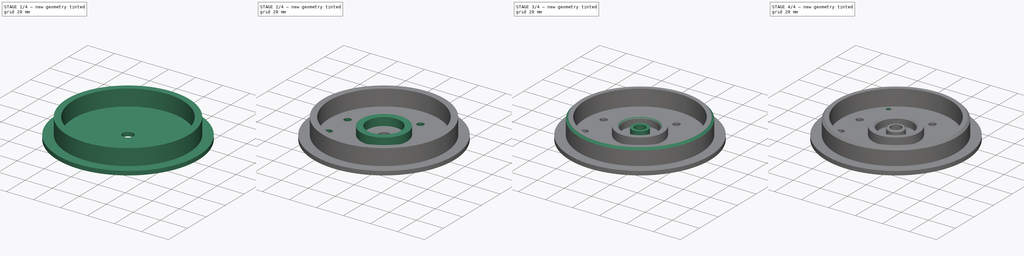
[diagram: build sequence overview — one tinted view per stage of 4, left to right]
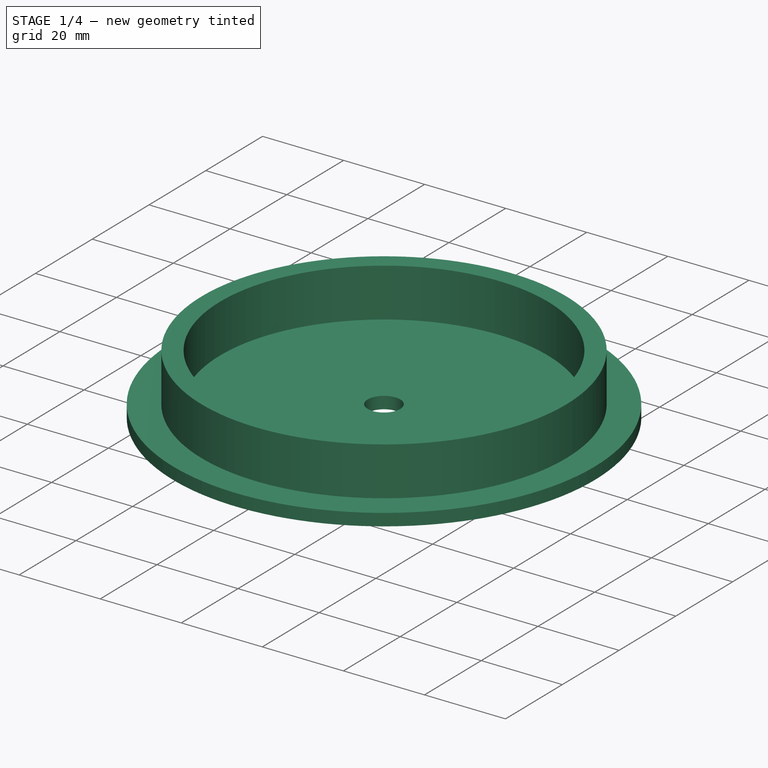
[diagram: stage 1 of 4 — iso view after this stage's code; geometry added in this stage tinted green]
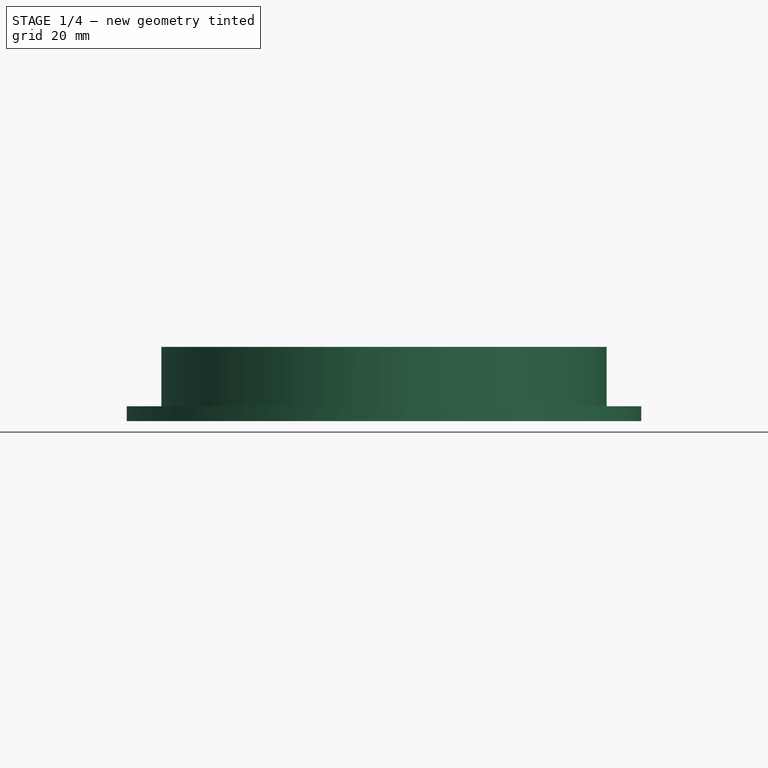
[diagram: stage 1 of 4 — front view after this stage's code; geometry added in this stage tinted green]
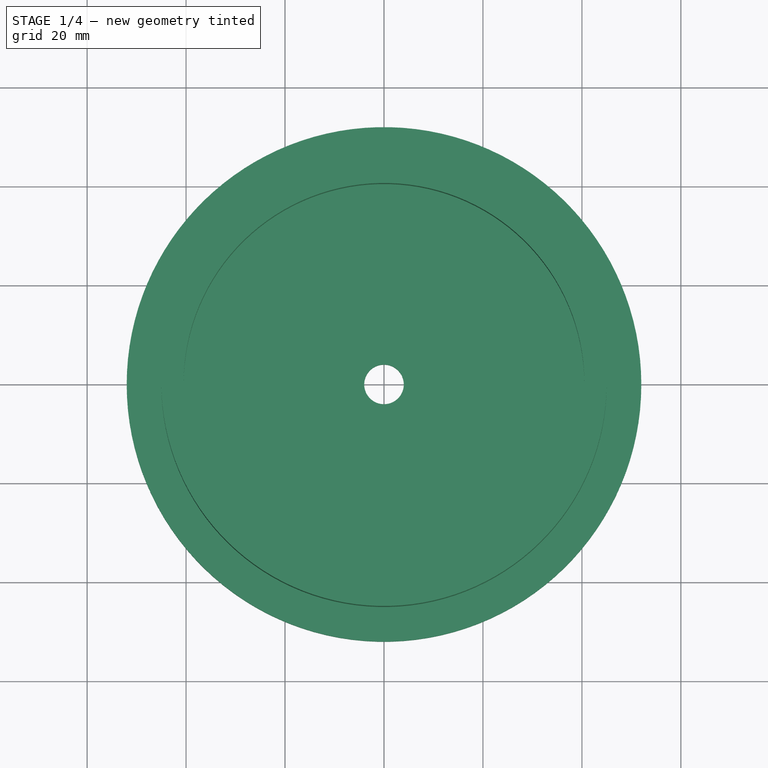
[diagram: stage 1 of 4 — top view after this stage's code; geometry added in this stage tinted green]
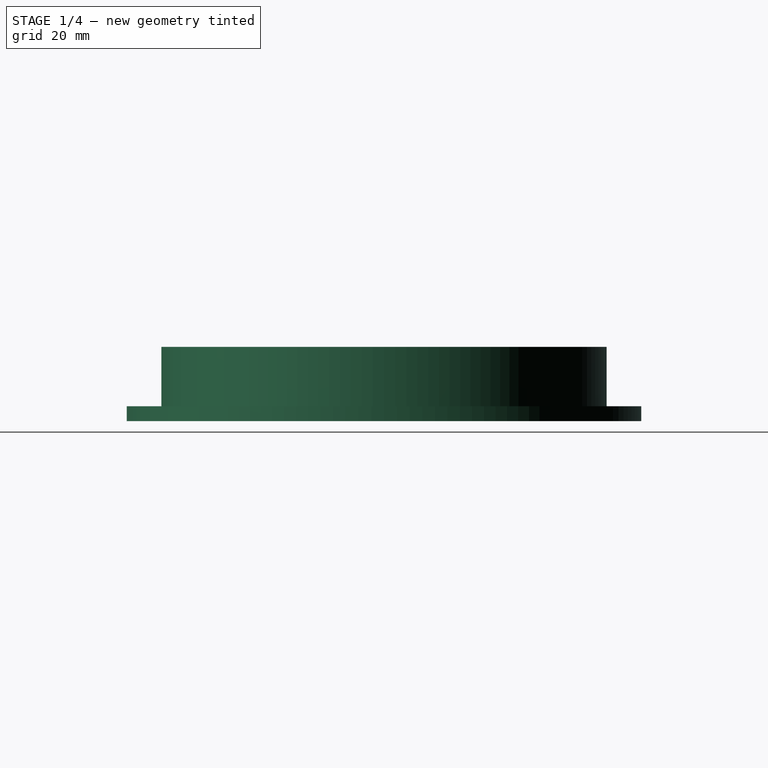
[diagram: stage 1 of 4 — right view after this stage's code; geometry added in this stage tinted green]
FCSTD DOCUMENT  (FreeCAD 0.19R24276 (Git))
Label: Mobile_connection_top_part_N1
License: All rights reserved
LicenseURL: http://en.wikipedia.org/wiki/All_rights_reserved
objects: Sketcher::SketchObject×6, PartDesign::Pad×4, PartDesign::Chamfer×3, PartDesign::Pocket×2, PartDesign::Body×1
note: 25 computed .brp shape members not serialized (recipe doc carries the construction recipe); baked Part::Feature solids carry a one-line shape summary decoded from their .brp

FEATURE [Sketcher::SketchObject] Sketch
  FullyConstrained = true
  MapMode = 5
  Support = -> [XY_Plane]
  sketch-geometry (2):
    g0: Circle CenterX=0 CenterY=0 CenterZ=0 NormalX=0 NormalY=0 NormalZ=1 AngleXU=0 Radius=52
    g1: Circle CenterX=0 CenterY=0 CenterZ=0 NormalX=0 NormalY=0 NormalZ=1 AngleXU=0 Radius=4
  constraints (4):
    c: Coincident(g0,g-1)
    c: Diameter(g0) = 104
    c: Coincident(g1,g0)
    c: Diameter(g1) = 8
FEATURE [PartDesign::Pad] Pad
  Direction = (1,1,1)
  Length = 3
  Length2 = 100
  Profile = -> Sketch
  Type = 0
FEATURE [Sketcher::SketchObject] Sketch001
  FullyConstrained = true
  MapMode = 5
  Placement = pos=(0,0,3) rot=(0,0,1;0rad)
  Support = -> [Pad]
  sketch-geometry (2):
    g0: Circle CenterX=0 CenterY=0 CenterZ=0 NormalX=0 NormalY=0 NormalZ=1 AngleXU=0 Radius=45
    g1: Circle CenterX=0 CenterY=0 CenterZ=0 NormalX=0 NormalY=0 NormalZ=1 AngleXU=0 Radius=40.5
  constraints (4):
    c: Coincident(g0,g-1)
    c: Diameter(g0) = 90
    c: Coincident(g1,g0)
    c: Diameter(g1) = 81
FEATURE [PartDesign::Pad] Pad001
  BaseFeature = -> Pad
  Direction = (1,1,1)
  Length = 12
  Length2 = 100
  Profile = -> Sketch001
  Type = 0
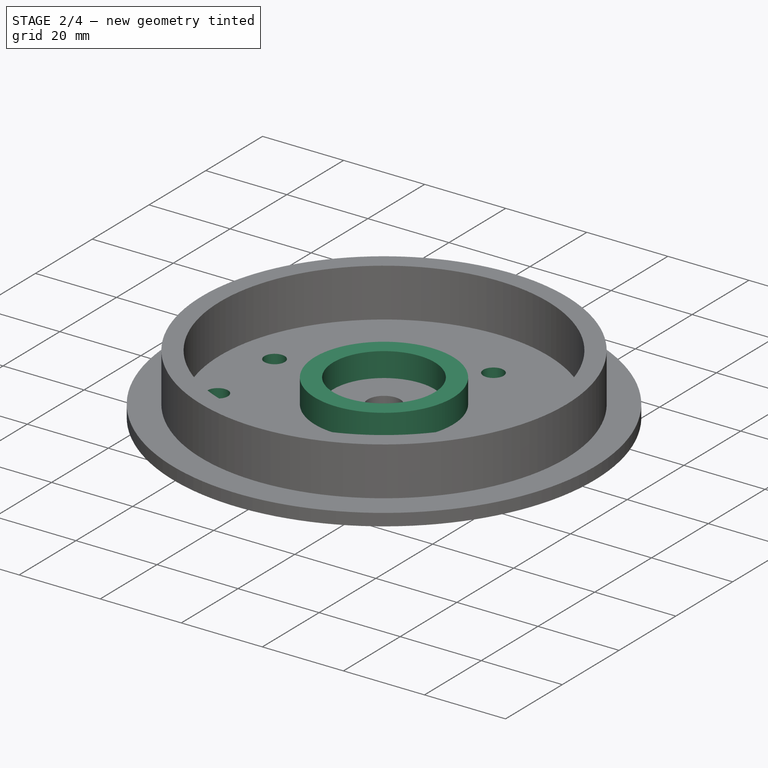
[diagram: stage 2 of 4 — iso view after this stage's code; geometry added in this stage tinted green]
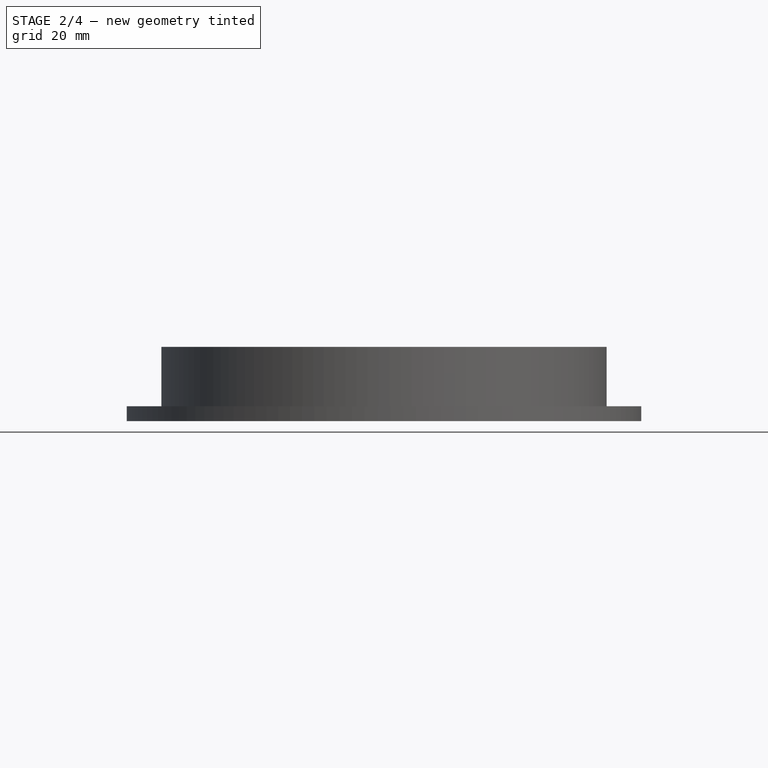
[diagram: stage 2 of 4 — front view after this stage's code; geometry added in this stage tinted green]
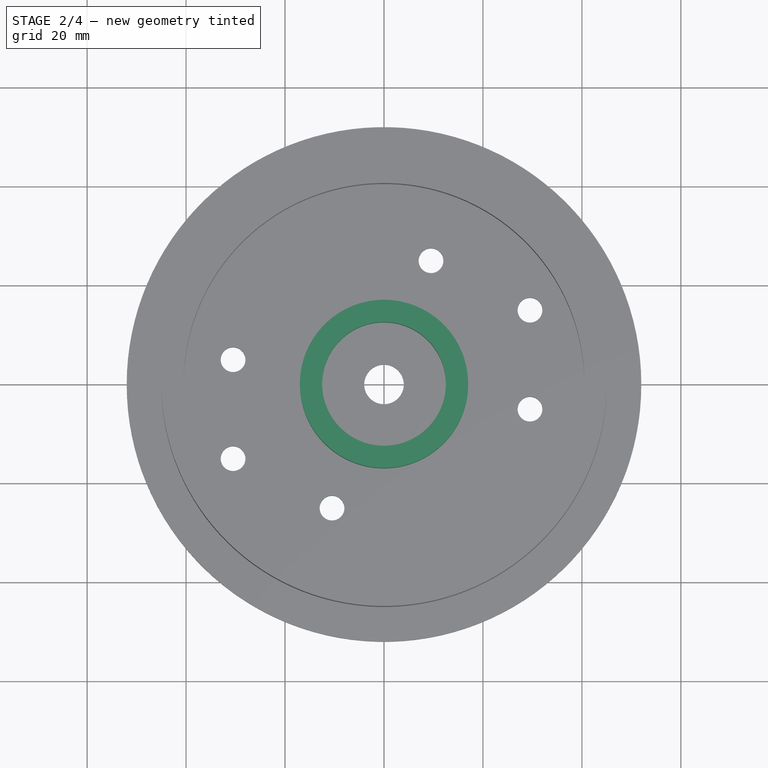
[diagram: stage 2 of 4 — top view after this stage's code; geometry added in this stage tinted green]
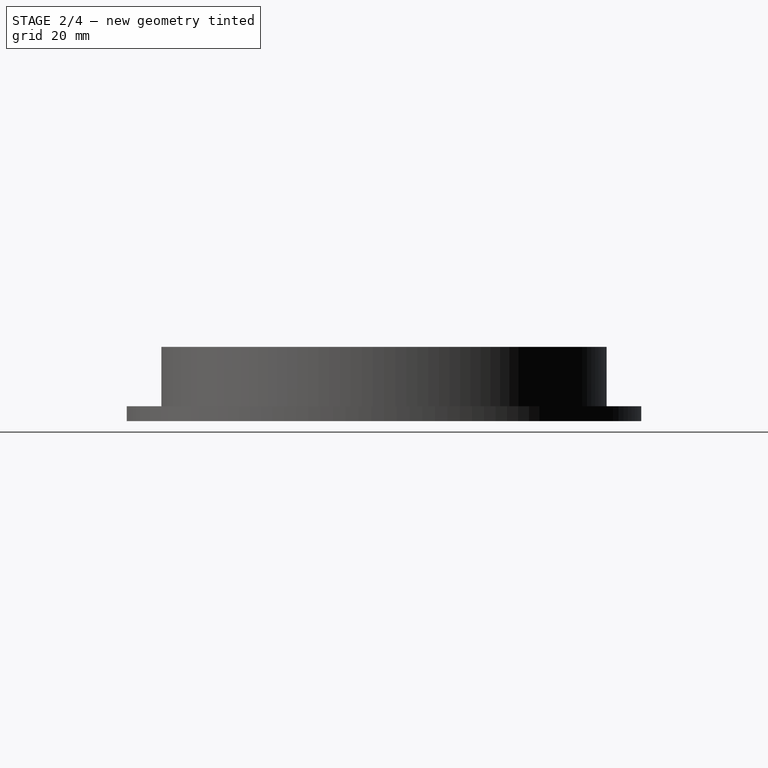
[diagram: stage 2 of 4 — right view after this stage's code; geometry added in this stage tinted green]
FEATURE [Sketcher::SketchObject] Sketch002
  FullyConstrained = true
  MapMode = 5
  Placement = pos=(0,0,3) rot=(0,0,1;0rad)
  Support = -> [Pad001]
  sketch-geometry (23):
    g0: Circle CenterX=-30.5 CenterY=25 CenterZ=0 NormalX=0 NormalY=0 NormalZ=1 AngleXU=0 Radius=2.5
    g1: Circle CenterX=-30.5 CenterY=5 CenterZ=0 NormalX=0 NormalY=0 NormalZ=1 AngleXU=0 Radius=2.5
    g2: Circle CenterX=-30.5 CenterY=-15 CenterZ=0 NormalX=0 NormalY=0 NormalZ=1 AngleXU=0 Radius=2.5
    g3: Circle CenterX=-30.5 CenterY=-35 CenterZ=0 NormalX=0 NormalY=0 NormalZ=1 AngleXU=0 Radius=2.5
    g4: Circle CenterX=-10.5 CenterY=35 CenterZ=0 NormalX=0 NormalY=0 NormalZ=1 AngleXU=0 Radius=2.5
    g5: Circle CenterX=-10.5 CenterY=15 CenterZ=0 NormalX=0 NormalY=0 NormalZ=1 AngleXU=0 Radius=2.5
    g6: Circle CenterX=-10.5 CenterY=-5 CenterZ=0 NormalX=0 NormalY=0 NormalZ=1 AngleXU=0 Radius=2.5
    g7: Circle CenterX=-10.5 CenterY=-25 CenterZ=0 NormalX=0 NormalY=0 NormalZ=1 AngleXU=0 Radius=2.5
    g8: Circle CenterX=9.5 CenterY=25 CenterZ=0 NormalX=0 NormalY=0 NormalZ=1 AngleXU=0 Radius=2.5
    g9: Circle CenterX=9.5 CenterY=5 CenterZ=0 NormalX=0 NormalY=0 NormalZ=1 AngleXU=0 Radius=2.5
    g10: Circle CenterX=9.5 CenterY=-15 CenterZ=0 NormalX=0 NormalY=0 NormalZ=1 AngleXU=0 Radius=2.5
    g11: Circle CenterX=9.5 CenterY=-35 CenterZ=0 NormalX=0 NormalY=0 NormalZ=1 AngleXU=0 Radius=2.5
    g12: Circle CenterX=29.5 CenterY=35 CenterZ=0 NormalX=0 NormalY=0 NormalZ=1 AngleXU=0 Radius=2.5
    g13: Circle CenterX=29.5 CenterY=15 CenterZ=0 NormalX=0 NormalY=0 NormalZ=1 AngleXU=0 Radius=2.5
    g14: Circle CenterX=29.5 CenterY=-5 CenterZ=0 NormalX=0 NormalY=0 NormalZ=1 AngleXU=0 Radius=2.5
    g15: Circle CenterX=29.5 CenterY=-25 CenterZ=0 NormalX=0 NormalY=0 NormalZ=1 AngleXU=0 Radius=2.5
    g16: LineSegment StartX=-100 StartY=40 StartZ=0 EndX=100 EndY=40 EndZ=0
    g17: LineSegment StartX=100 StartY=40 StartZ=0 EndX=100 EndY=-40 EndZ=0
    g18: LineSegment StartX=100 StartY=-40 StartZ=0 EndX=-100 EndY=-40 EndZ=0
    g19: LineSegment StartX=-100 StartY=-40 StartZ=0 EndX=-100 EndY=40 EndZ=0
    g20: LineSegment StartX=0 StartY=40 StartZ=0 EndX=0 EndY=-40 EndZ=0
    g21: LineSegment StartX=-100 StartY=0 StartZ=0 EndX=100 EndY=0 EndZ=0
    g22: GeomPoint X=0 Y=0 Z=0
  constraints (69):
    c: Diameter(g0) = 5
    c: Equal(g0,g1) = 5
    c: DistanceY(g1,g0) = 20
    c: Equal(g0,g2) = 5
    c: Equal(g2,g3) = 5
    c: DistanceY(g3,g2) = 20
    c: DistanceY(g2,g1) = 20
    c: Equal(g0,g4) = 5
    c: Equal(g4,g5) = 5
    c: DistanceY(g5,g4) = 20
    c: Equal(g4,g6) = 5
    c: Equal(g6,g7) = 5
    c: DistanceY(g7,g6) = 20
    c: DistanceY(g6,g5) = 20
    c: DistanceY(g3,g7) = 10
    c: DistanceX(g3,g7) = 20
    c: Vertical(g2,g3)
    c: Vertical(g1,g2)
    c: Vertical(g0,g1)
    c: Vertical(g7,g6)
    c: Vertical(g6,g5)
    c: Vertical(g5,g4)
    c: Equal(g0,g8) = 5
    c: Equal(g8,g9) = 5
    c: DistanceY(g9,g8) = 20
    c: Equal(g8,g10) = 5
    c: Equal(g10,g11) = 5
    c: DistanceY(g11,g10) = 20
    c: DistanceY(g10,g9) = 20
    c: Equal(g8,g12) = 5
    c: Equal(g12,g13) = 5
    c: DistanceY(g13,g12) = 20
    c: Equal(g12,g14) = 5
    c: Equal(g14,g15) = 5
    c: DistanceY(g15,g14) = 20
    c: DistanceY(g14,g13) = 20
    c: DistanceY(g11,g15) = 10
    c: DistanceX(g11,g15) = 20
    c: Vertical(g10,g11)
    c: Vertical(g9,g10)
    c: Vertical(g8,g9)
    c: Vertical(g15,g14)
    c: Vertical(g14,g13)
    c: Vertical(g13,g12)
    c: DistanceX(g7,g11) = 20
    c: DistanceY(g11,g7) = 10
    c: Coincident(g16,g17)
    c: Coincident(g17,g18)
    c: Coincident(g18,g19)
    c: Coincident(g19,g16)
    c: Horizontal(g16)
    c: Horizontal(g18)
    c: Vertical(g17)
    c: Vertical(g19)
    c: DistanceY(g17,g17) = 80
    c: DistanceX(g18,g18) = 200
    c: DistanceY(g18,g3) = 5
    c: Vertical(g20)
    c: PointOnObject(g20,g18)
    c: PointOnObject(g20,g16)
    c: DistanceX(g18,g20) = 100
    c: DistanceX(g7,g20) = 10.5
    c: Horizontal(g21)
    c: PointOnObject(g21,g17)
    c: PointOnObject(g21,g19)
    c: DistanceY(g21,g16) = 40
    c: DistanceX(g20,g22) = 0
    c: DistanceY(g22,g21) = 0
    c: Coincident(g22,g-1)
FEATURE [PartDesign::Pocket] Pocket
  BaseFeature = -> Pad001
  Length = 5
  Length2 = 100
  Profile = -> Sketch002
  Type = 1
FEATURE [Sketcher::SketchObject] Sketch003
  FullyConstrained = true
  MapMode = 5
  Placement = pos=(0,0,3) rot=(0,0,1;0rad)
  Support = -> [Pocket]
  sketch-geometry (2):
    g0: Circle CenterX=0 CenterY=0 CenterZ=0 NormalX=0 NormalY=0 NormalZ=1 AngleXU=0 Radius=12.5
    g1: Circle CenterX=0 CenterY=0 CenterZ=0 NormalX=0 NormalY=0 NormalZ=1 AngleXU=0 Radius=17
  constraints (4):
    c: Coincident(g0,g-1)
    c: Coincident(g1,g0)
    c: Diameter(g0) = 25
    c: Diameter(g1) = 34
FEATURE [PartDesign::Pad] Pad002
  BaseFeature = -> Pocket
  Direction = (1,1,1)
  Length = 6
  Length2 = 100
  Profile = -> Sketch003
  Type = 0
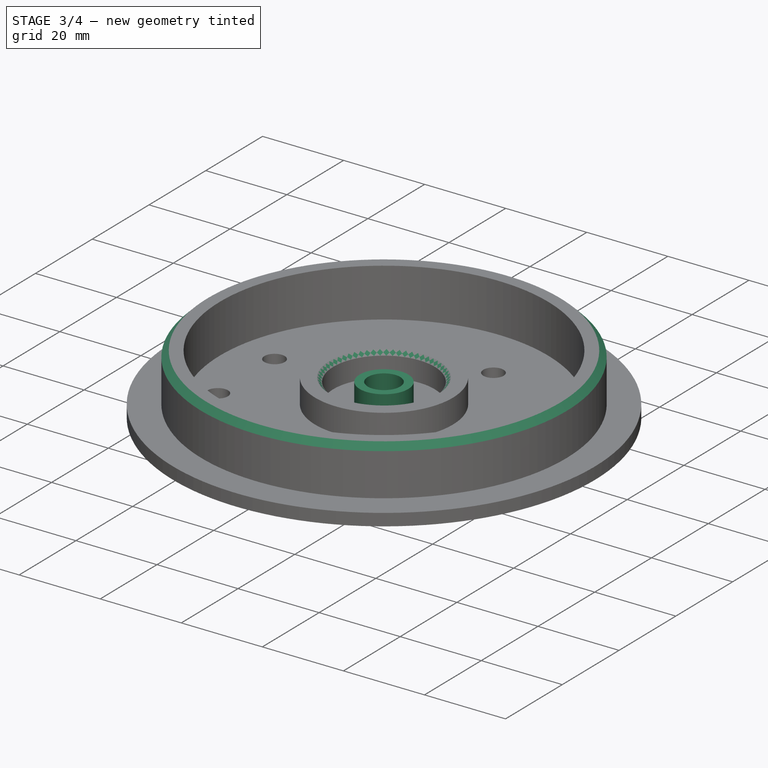
[diagram: stage 3 of 4 — iso view after this stage's code; geometry added in this stage tinted green]
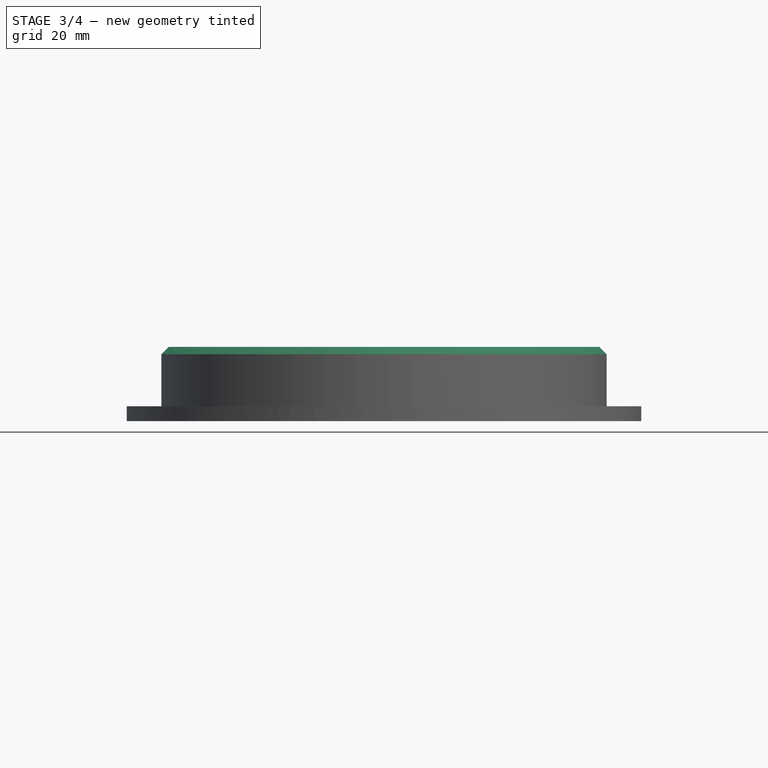
[diagram: stage 3 of 4 — front view after this stage's code; geometry added in this stage tinted green]
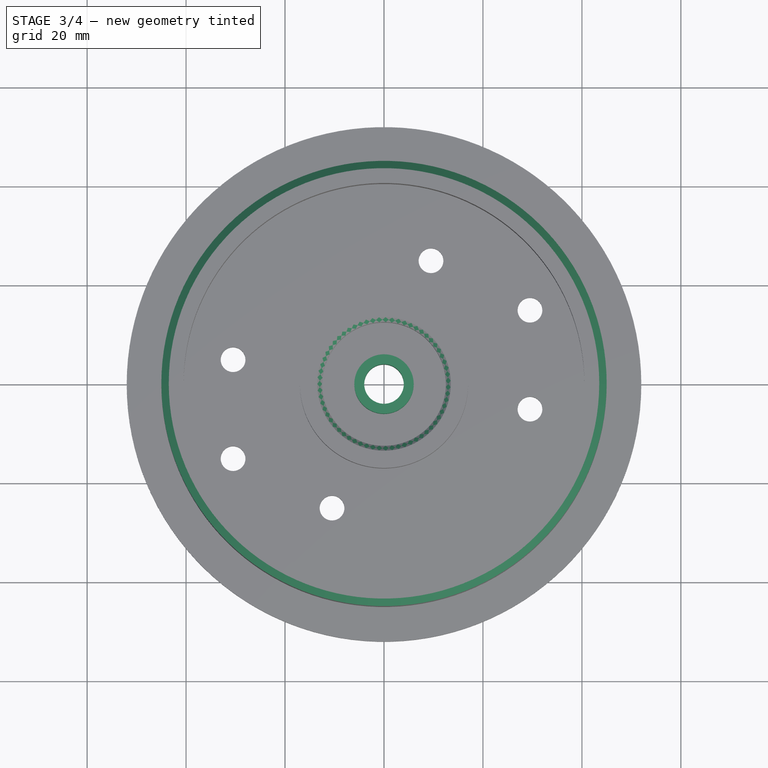
[diagram: stage 3 of 4 — top view after this stage's code; geometry added in this stage tinted green]
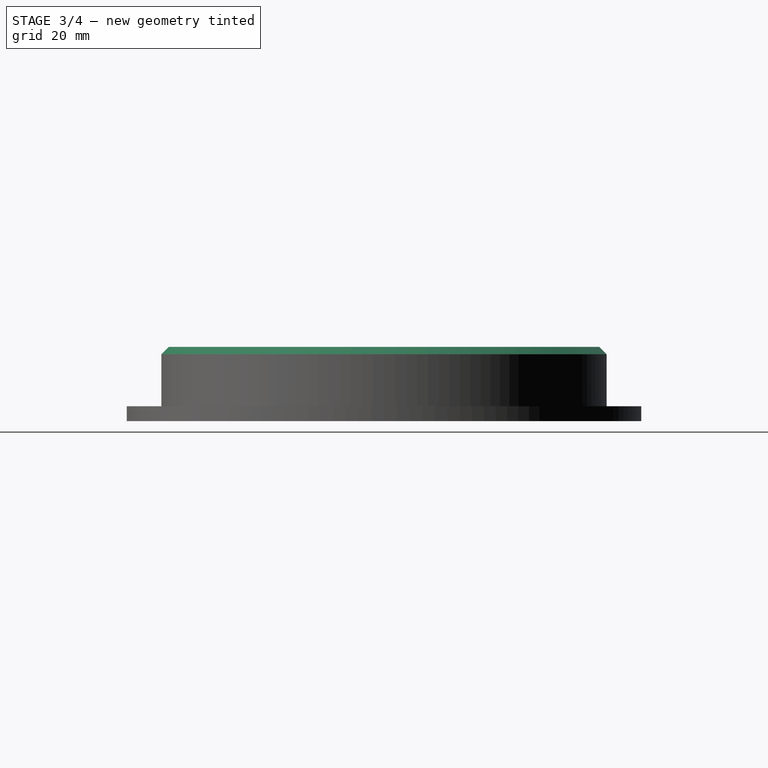
[diagram: stage 3 of 4 — right view after this stage's code; geometry added in this stage tinted green]
FEATURE [Sketcher::SketchObject] Sketch004
  FullyConstrained = true
  MapMode = 5
  Placement = pos=(0,0,3) rot=(0,0,1;0rad)
  Support = -> [Pad002]
  sketch-geometry (2):
    g0: Circle CenterX=0 CenterY=0 CenterZ=0 NormalX=0 NormalY=0 NormalZ=1 AngleXU=0 Radius=4
    g1: Circle CenterX=0 CenterY=0 CenterZ=0 NormalX=0 NormalY=0 NormalZ=1 AngleXU=0 Radius=6
  constraints (4):
    c: Coincident(g0,g-1)
    c: Coincident(g1,g0)
    c: Diameter(g0) = 8
    c: Diameter(g1) = 12
FEATURE [PartDesign::Pad] Pad003
  BaseFeature = -> Pad002
  Direction = (1,1,1)
  Length = 5
  Length2 = 100
  Profile = -> Sketch004
  Type = 0
FEATURE [PartDesign::Chamfer] Chamfer
  Angle = 45
  Base = -> Pad003 [Edge27]
  BaseFeature = -> Pad003
  ChamferType = 0
  FlipDirection = false
  Size = 1.5
  Size2 = 1
  SupportTransform = false
FEATURE [PartDesign::Chamfer] Chamfer001
  Angle = 45
  Base = -> Chamfer [Edge38]
  BaseFeature = -> Chamfer
  ChamferType = 0
  FlipDirection = false
  Size = 1
  Size2 = 1
  SupportTransform = false
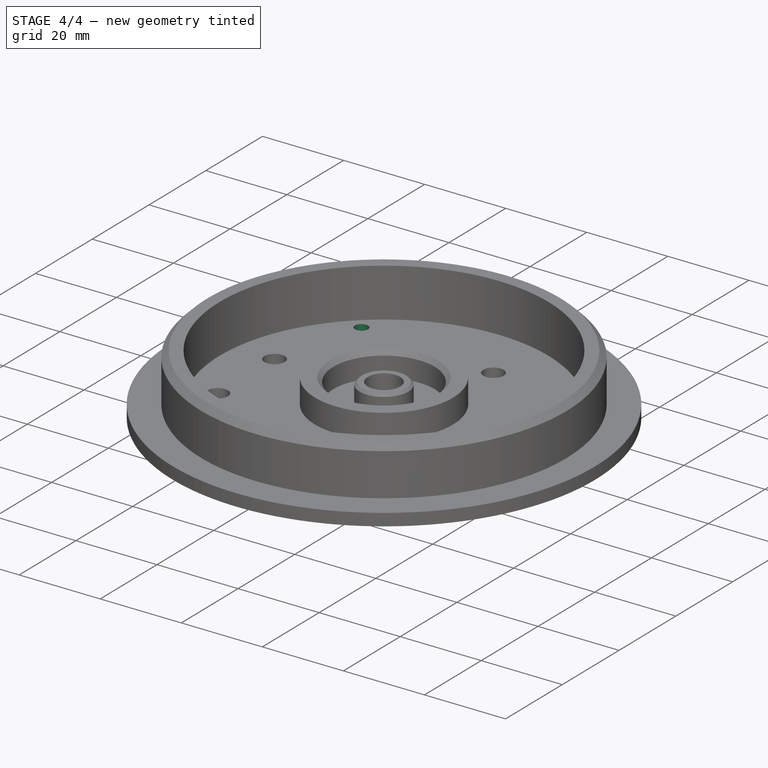
[diagram: stage 4 of 4 — iso view after this stage's code; geometry added in this stage tinted green]
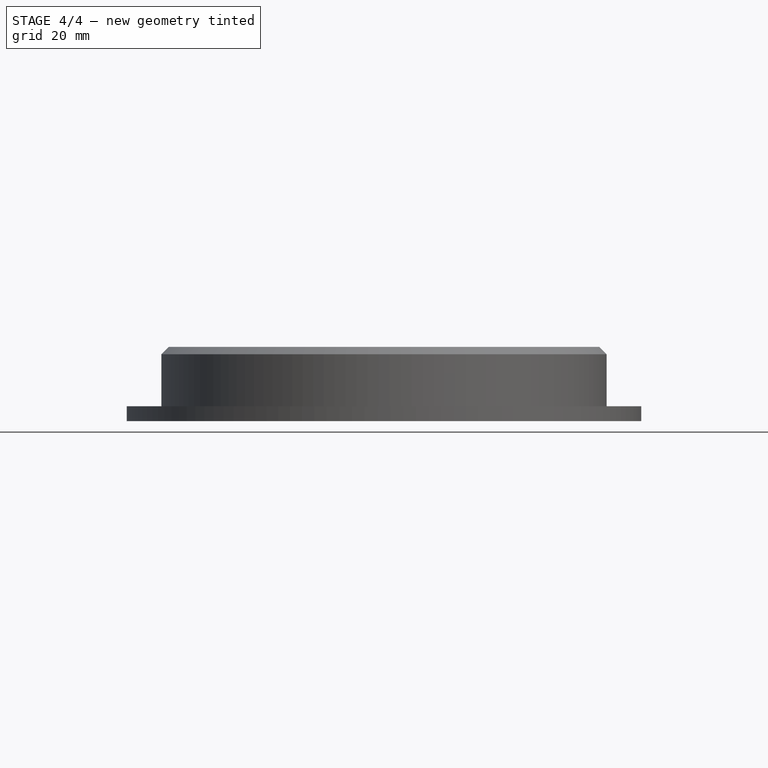
[diagram: stage 4 of 4 — front view after this stage's code; geometry added in this stage tinted green]
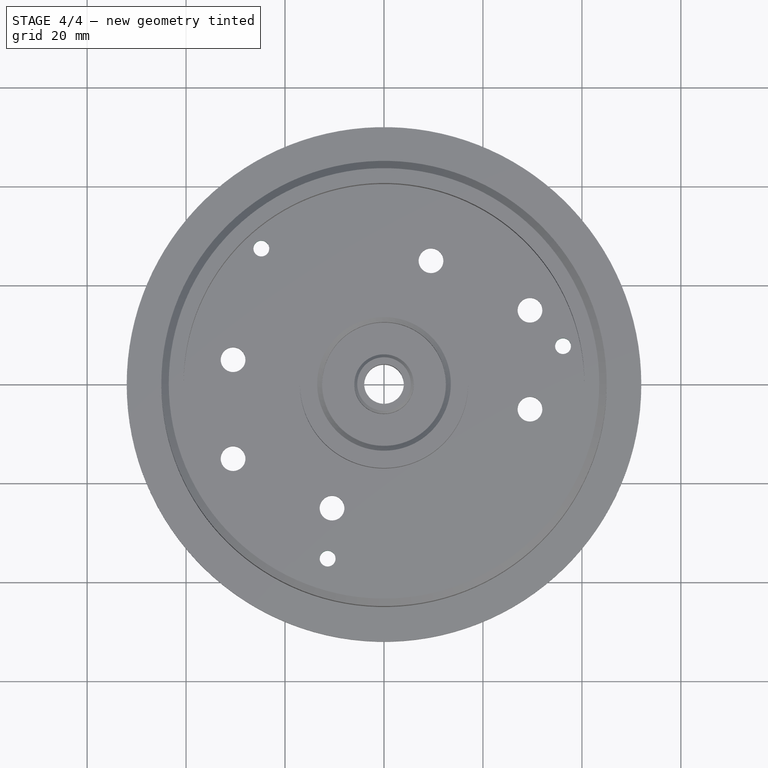
[diagram: stage 4 of 4 — top view after this stage's code; geometry added in this stage tinted green]
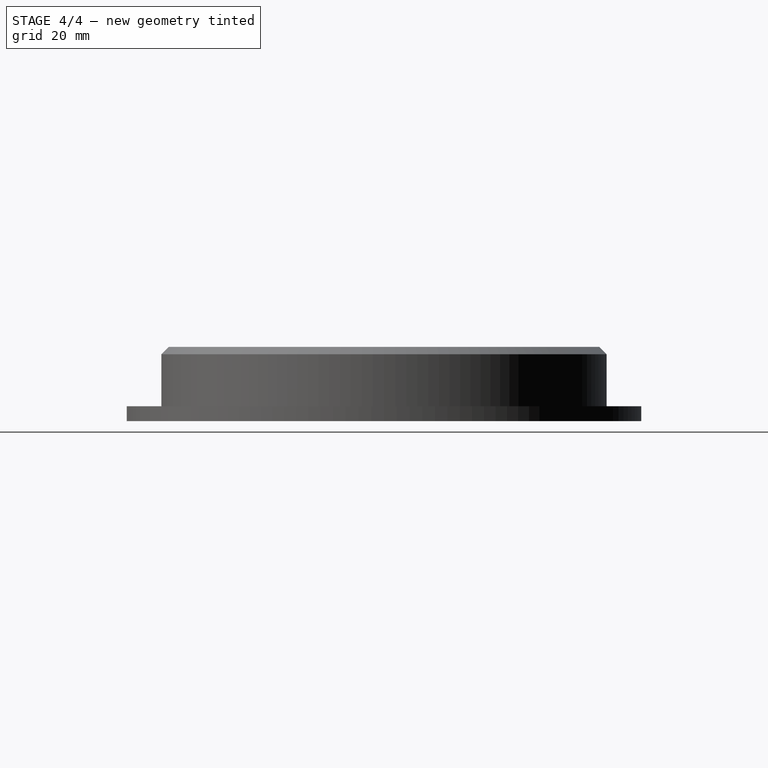
[diagram: stage 4 of 4 — right view after this stage's code; geometry added in this stage tinted green]
FEATURE [PartDesign::Chamfer] Chamfer002
  Angle = 45
  Base = -> Chamfer001 [Edge32]
  BaseFeature = -> Chamfer001
  ChamferType = 0
  FlipDirection = false
  Size = 0.6
  Size2 = 1
  SupportTransform = false
FEATURE [Sketcher::SketchObject] Sketch005
  FullyConstrained = false
  MapMode = 5
  Placement = pos=(0,0,3) rot=(0,0,1;0rad)
  Support = -> [Chamfer002]
  sketch-geometry (7):
    g0: LineSegment StartX=-24.7927 StartY=27.4649 StartZ=0 EndX=-11.389 EndY=-35.2036 EndZ=0
    g1: LineSegment StartX=-11.389 StartY=-35.2036 StartZ=0 EndX=36.1817 EndY=7.73865 EndZ=0
    g2: LineSegment StartX=36.1817 StartY=7.73865 StartZ=0 EndX=-24.7927 EndY=27.4649 EndZ=0
    g3: Circle CenterX=0 CenterY=0 CenterZ=0 NormalX=0 NormalY=0 NormalZ=1 AngleXU=0 Radius=37
    g4: Circle CenterX=-24.7927 CenterY=27.4649 CenterZ=0 NormalX=0 NormalY=0 NormalZ=1 AngleXU=0 Radius=1.6
    g5: Circle CenterX=36.1817 CenterY=7.73865 CenterZ=0 NormalX=0 NormalY=0 NormalZ=1 AngleXU=0 Radius=1.6
    g6: Circle CenterX=-11.389 CenterY=-35.2036 CenterZ=0 NormalX=0 NormalY=0 NormalZ=1 AngleXU=0 Radius=1.6
  constraints (16):
    c: Coincident(g0,g1)
    c: Coincident(g1,g2)
    c: Coincident(g2,g0)
    c: Equal(g0,g1)
    c: Equal(g0,g2)
    c: PointOnObject(g0,g3)
    c: PointOnObject(g1,g3)
    c: PointOnObject(g2,g3)
    c: Diameter(g3) = 74
    c: Coincident(g3,g-1)
    c: Coincident(g4,g0)
    c: Coincident(g5,g1)
    c: Coincident(g6,g0)
    c: Diameter(g4) = 3.2
    c: Equal(g4,g6)
    c: Equal(g4,g5)
FEATURE [PartDesign::Pocket] Pocket001
  BaseFeature = -> Chamfer002
  Length = 5
  Length2 = 100
  Profile = -> Sketch005
  Type = 1
FEATURE [PartDesign::Body] Body
  Group = -> [Sketch,Pad,Sketch001,Pad001,Sketch002,Pocket,Sketch003,Pad002,Sketch004,Pad003,Chamfer,Chamfer001,Chamfer002,Sketch005,Pocket001]
  Origin = -> Origin
  Tip = -> Pocket001
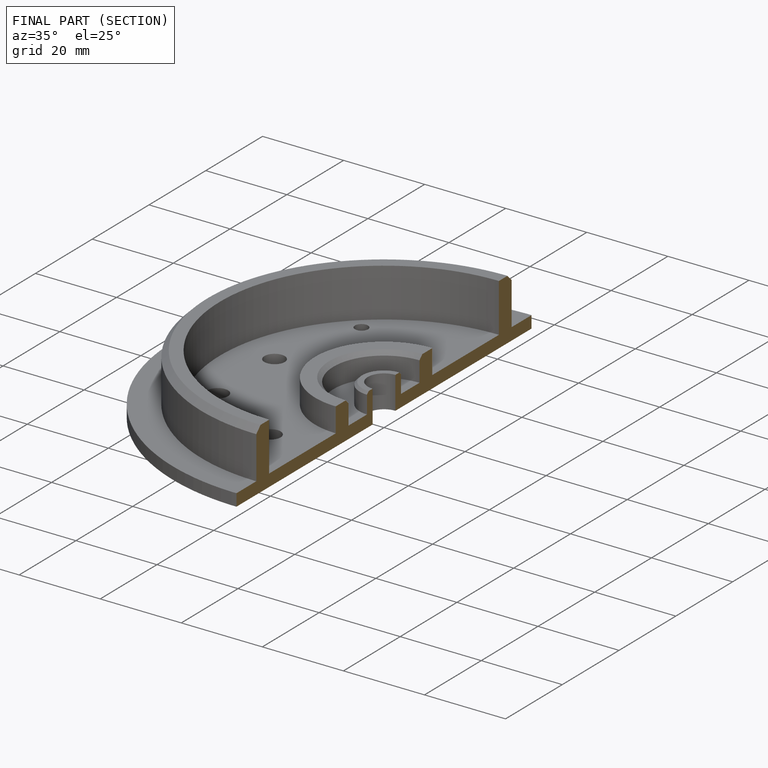
[diagram: finished part — half-section view (interior)]
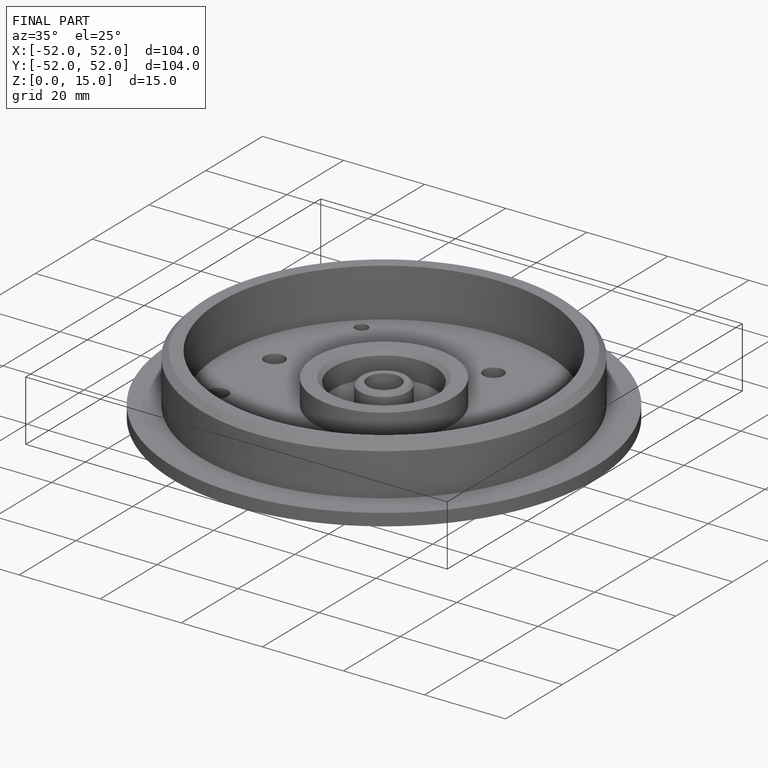
[diagram: finished part — iso view with bounding-box wireframe]
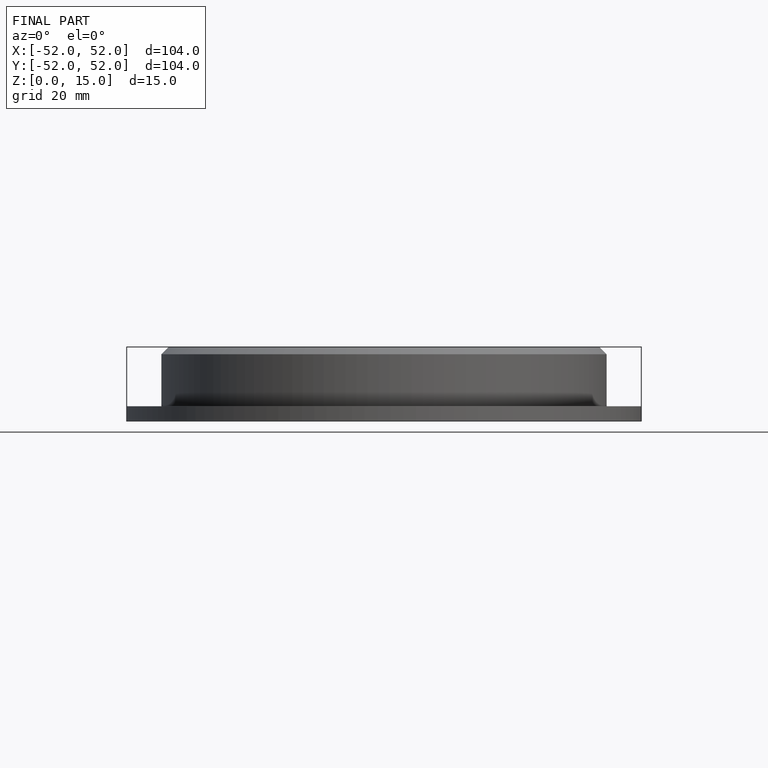
[diagram: finished part — front view with bounding-box wireframe]
